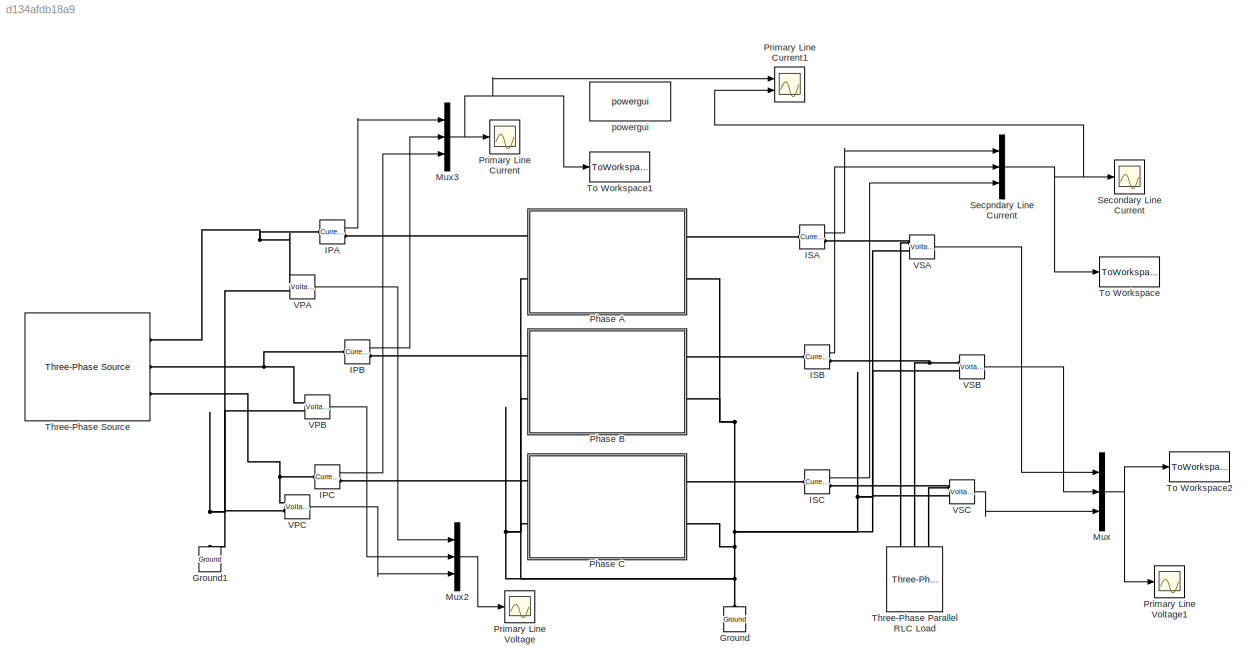
MODEL slx_d134afdb18a9
KIND model
CONFIG AbsTol = auto
CONFIG EnableMultiTasking = off
CONFIG FixedStep = auto
CONFIG MaxStep = auto
CONFIG MinStep = auto
CONFIG RelTol = 1e-3
CONFIG SampleTimeConstraint = Unconstrained
CONFIG SolverName = VariableStepAuto
CONFIG StartTime = 0.0
CONFIG StopTime = time_to_simulate
WORKSPACE source: mxarray member
WORKSPACE Lm = 0.126
WORKSPACE Rm = 146.7889
WORKSPACE windingl = [0.3203609 0.3203609 0.3203609 0.000464923 0.000464923 0.000464923]
WORKSPACE windingr = [0.046115 0.046115 0.046115 6.692455e-05 6.692455e-05 6.692455e-05]
BLOCK [Reference] Ground  REF=spsGroundLib/Ground
  NameLocation = right
  Ports = [0, 0, 0, 0, 0, 1]
  SourceBlock = spsGroundLib/Ground
  SourceProductBaseCode = PS
  SourceType = Ground
BLOCK [Reference] Ground1  REF=spsGroundLib/Ground
  NameLocation = right
  Ports = [0, 0, 0, 0, 0, 1]
  SourceBlock = spsGroundLib/Ground
  SourceProductBaseCode = PS
  SourceType = Ground
BLOCK [Reference] IPA  REF=spsCurrentMeasurementLib/Current Measurement
  Ports = [0, 1, 0, 0, 0, 1, 1]
  SourceBlock = spsCurrentMeasurementLib/Current Measurement
  SourceProductBaseCode = PS
  SourceType = Current Measurement
  UserDataPersistent = on
BLOCK [Reference] IPB  REF=spsCurrentMeasurementLib/Current Measurement
  Ports = [0, 1, 0, 0, 0, 1, 1]
  SourceBlock = spsCurrentMeasurementLib/Current Measurement
  SourceProductBaseCode = PS
  SourceType = Current Measurement
  UserDataPersistent = on
BLOCK [Reference] IPC  REF=spsCurrentMeasurementLib/Current Measurement
  Ports = [0, 1, 0, 0, 0, 1, 1]
  SourceBlock = spsCurrentMeasurementLib/Current Measurement
  SourceProductBaseCode = PS
  SourceType = Current Measurement
  UserDataPersistent = on
BLOCK [Reference] ISA  REF=spsCurrentMeasurementLib/Current Measurement
  Ports = [0, 1, 0, 0, 0, 1, 1]
  SourceBlock = spsCurrentMeasurementLib/Current Measurement
  SourceProductBaseCode = PS
  SourceType = Current Measurement
  UserDataPersistent = on
BLOCK [Reference] ISB  REF=spsCurrentMeasurementLib/Current Measurement
  Ports = [0, 1, 0, 0, 0, 1, 1]
  SourceBlock = spsCurrentMeasurementLib/Current Measurement
  SourceProductBaseCode = PS
  SourceType = Current Measurement
  UserDataPersistent = on
BLOCK [Reference] ISC  REF=spsCurrentMeasurementLib/Current Measurement
  Ports = [0, 1, 0, 0, 0, 1, 1]
  SourceBlock = spsCurrentMeasurementLib/Current Measurement
  SourceProductBaseCode = PS
  SourceType = Current Measurement
  UserDataPersistent = on
BLOCK [Mux] Mux
  DisplayOption = bar
  Inputs = 3
  Ports = [3, 1]
BLOCK [Mux] Mux2
  DisplayOption = bar
  Inputs = 3
  Ports = [3, 1]
BLOCK [Mux] Mux3
  DisplayOption = bar
  Inputs = 3
  Ports = [3, 1]
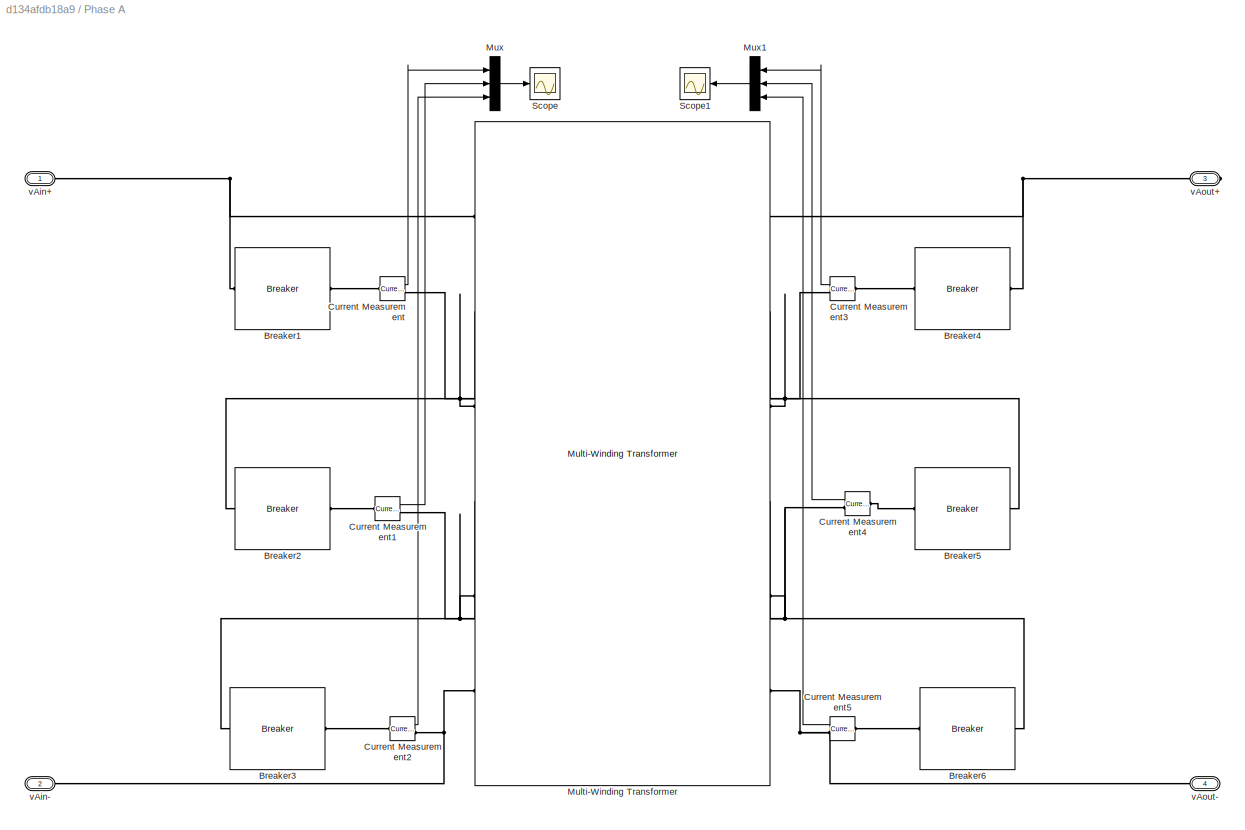
BLOCK [SubSystem] Phase A
  Ports = [0, 0, 0, 0, 0, 2, 2]
  RequestExecContextInheritance = off
BLOCK [Reference] Phase A/Breaker1  REF=spsBreakerLib/Breaker
  Ports = [0, 0, 0, 0, 0, 1, 1]
  SourceBlock = spsBreakerLib/Breaker
  SourceProductBaseCode = PS
  SourceType = Breaker
BLOCK [Reference] Phase A/Breaker2  REF=spsBreakerLib/Breaker
  Ports = [0, 0, 0, 0, 0, 1, 1]
  SourceBlock = spsBreakerLib/Breaker
  SourceProductBaseCode = PS
  SourceType = Breaker
BLOCK [Reference] Phase A/Breaker3  REF=spsBreakerLib/Breaker
  Ports = [0, 0, 0, 0, 0, 1, 1]
  SourceBlock = spsBreakerLib/Breaker
  SourceProductBaseCode = PS
  SourceType = Breaker
BLOCK [Reference] Phase A/Breaker4  REF=spsBreakerLib/Breaker
  Ports = [0, 0, 0, 0, 0, 1, 1]
  SourceBlock = spsBreakerLib/Breaker
  SourceProductBaseCode = PS
  SourceType = Breaker
BLOCK [Reference] Phase A/Breaker5  REF=spsBreakerLib/Breaker
  Ports = [0, 0, 0, 0, 0, 1, 1]
  SourceBlock = spsBreakerLib/Breaker
  SourceProductBaseCode = PS
  SourceType = Breaker
BLOCK [Reference] Phase A/Breaker6  REF=spsBreakerLib/Breaker
  Ports = [0, 0, 0, 0, 0, 1, 1]
  SourceBlock = spsBreakerLib/Breaker
  SourceProductBaseCode = PS
  SourceType = Breaker
BLOCK [Reference] Phase A/Current Measurement  REF=spsCurrentMeasurementLib/Current Measurement
  Ports = [0, 1, 0, 0, 0, 1, 1]
  SourceBlock = spsCurrentMeasurementLib/Current Measurement
  SourceProductBaseCode = PS
  SourceType = Current Measurement
  UserDataPersistent = on
BLOCK [Reference] Phase A/Current Measurement1  REF=spsCurrentMeasurementLib/Current Measurement
  Ports = [0, 1, 0, 0, 0, 1, 1]
  SourceBlock = spsCurrentMeasurementLib/Current Measurement
  SourceProductBaseCode = PS
  SourceType = Current Measurement
  UserDataPersistent = on
BLOCK [Reference] Phase A/Current Measurement2  REF=spsCurrentMeasurementLib/Current Measurement
  Ports = [0, 1, 0, 0, 0, 1, 1]
  SourceBlock = spsCurrentMeasurementLib/Current Measurement
  SourceProductBaseCode = PS
  SourceType = Current Measurement
  UserDataPersistent = on
BLOCK [Reference] Phase A/Current Measurement3  REF=spsCurrentMeasurementLib/Current Measurement
  Ports = [0, 1, 0, 0, 0, 1, 1]
  SourceBlock = spsCurrentMeasurementLib/Current Measurement
  SourceProductBaseCode = PS
  SourceType = Current Measurement
  UserDataPersistent = on
BLOCK [Reference] Phase A/Current Measurement4  REF=spsCurrentMeasurementLib/Current Measurement
  Ports = [0, 1, 0, 0, 0, 1, 1]
  SourceBlock = spsCurrentMeasurementLib/Current Measurement
  SourceProductBaseCode = PS
  SourceType = Current Measurement
  UserDataPersistent = on
BLOCK [Reference] Phase A/Current Measurement5  REF=spsCurrentMeasurementLib/Current Measurement
  Ports = [0, 1, 0, 0, 0, 1, 1]
  SourceBlock = spsCurrentMeasurementLib/Current Measurement
  SourceProductBaseCode = PS
  SourceType = Current Measurement
  UserDataPersistent = on
BLOCK [Reference] Phase A/Multi-Winding Transformer  REF=spsMultiWindingTransformerLib/Multi-Winding
Transformer
  Ports = [0, 0, 0, 0, 0, 6, 6]
  SourceBlock = spsMultiWindingTransformerLib/Multi-Winding\nTransformer
  SourceProductBaseCode = PS
  SourceType = Multi-Winding Transformer
BLOCK [Mux] Phase A/Mux
  DisplayOption = bar
  Inputs = 3
  Ports = [3, 1]
BLOCK [Mux] Phase A/Mux1
  DisplayOption = bar
  Inputs = 3
  Ports = [3, 1]
BLOCK [Scope] Phase A/Scope
  Floating = off
  NumInputPorts = 1
  Ports = [1]
  ScopeSpecificationString = Simulink.scopes.TimeScopeBlockCfg('CurrentConfiguration', extmgr.ConfigurationSet(extmgr.Configuration('Core','General UI',true),extmgr.Configuration('Core','Source UI',true),extmgr.Configuration('Sources','WiredSimulink',true,'DataLoggingVariableName','ScopeData1'),extmgr.Configuration('Visuals','Time Domain',true,'SerializedDisplays',{struct('MinYLimReal','-0.00357','MaxYLimReal','0.00357','YLab...<+1451ch>
BLOCK [Scope] Phase A/Scope1
  Floating = off
  NumInputPorts = 1
  Ports = [1]
  ScopeSpecificationString = Simulink.scopes.TimeScopeBlockCfg('CurrentConfiguration', extmgr.ConfigurationSet(extmgr.Configuration('Core','General UI',true),extmgr.Configuration('Core','Source UI',true),extmgr.Configuration('Sources','WiredSimulink',true,'DataLoggingVariableName','ScopeData2'),extmgr.Configuration('Visuals','Time Domain',true,'SerializedDisplays',{struct('MinYLimReal','-993.44354','MaxYLimReal','1351.22284',...<+1470ch>
BLOCK [PMIOPort] Phase A/vAin+
  Side = Left
BLOCK [PMIOPort] Phase A/vAin-
  Port = 2
  Side = Left
BLOCK [PMIOPort] Phase A/vAout+
  Port = 3
  Side = Right
BLOCK [PMIOPort] Phase A/vAout-
  Port = 4
  Side = Right
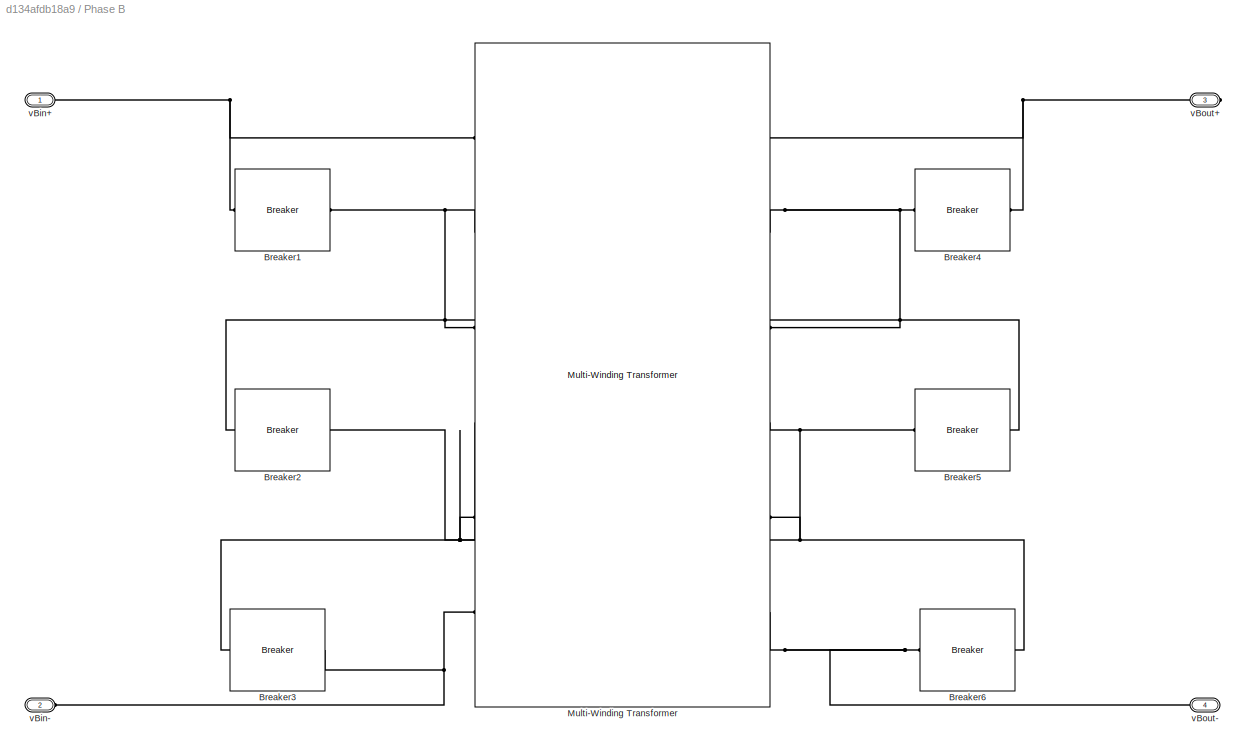
BLOCK [SubSystem] Phase B
  Ports = [0, 0, 0, 0, 0, 2, 2]
  RequestExecContextInheritance = off
BLOCK [Reference] Phase B/Breaker1  REF=spsBreakerLib/Breaker
  Ports = [0, 0, 0, 0, 0, 1, 1]
  SourceBlock = spsBreakerLib/Breaker
  SourceProductBaseCode = PS
  SourceType = Breaker
BLOCK [Reference] Phase B/Breaker2  REF=spsBreakerLib/Breaker
  Ports = [0, 0, 0, 0, 0, 1, 1]
  SourceBlock = spsBreakerLib/Breaker
  SourceProductBaseCode = PS
  SourceType = Breaker
BLOCK [Reference] Phase B/Breaker3  REF=spsBreakerLib/Breaker
  Ports = [0, 0, 0, 0, 0, 1, 1]
  SourceBlock = spsBreakerLib/Breaker
  SourceProductBaseCode = PS
  SourceType = Breaker
BLOCK [Reference] Phase B/Breaker4  REF=spsBreakerLib/Breaker
  Ports = [0, 0, 0, 0, 0, 1, 1]
  SourceBlock = spsBreakerLib/Breaker
  SourceProductBaseCode = PS
  SourceType = Breaker
BLOCK [Reference] Phase B/Breaker5  REF=spsBreakerLib/Breaker
  Ports = [0, 0, 0, 0, 0, 1, 1]
  SourceBlock = spsBreakerLib/Breaker
  SourceProductBaseCode = PS
  SourceType = Breaker
BLOCK [Reference] Phase B/Breaker6  REF=spsBreakerLib/Breaker
  Ports = [0, 0, 0, 0, 0, 1, 1]
  SourceBlock = spsBreakerLib/Breaker
  SourceProductBaseCode = PS
  SourceType = Breaker
BLOCK [Reference] Phase B/Multi-Winding Transformer  REF=spsMultiWindingTransformerLib/Multi-Winding
Transformer
  Ports = [0, 0, 0, 0, 0, 6, 6]
  SourceBlock = spsMultiWindingTransformerLib/Multi-Winding\nTransformer
  SourceProductBaseCode = PS
  SourceType = Multi-Winding Transformer
BLOCK [PMIOPort] Phase B/vBin+
  Side = Left
BLOCK [PMIOPort] Phase B/vBin-
  Port = 2
  Side = Left
BLOCK [PMIOPort] Phase B/vBout+
  Port = 3
  Side = Right
BLOCK [PMIOPort] Phase B/vBout-
  Port = 4
  Side = Right
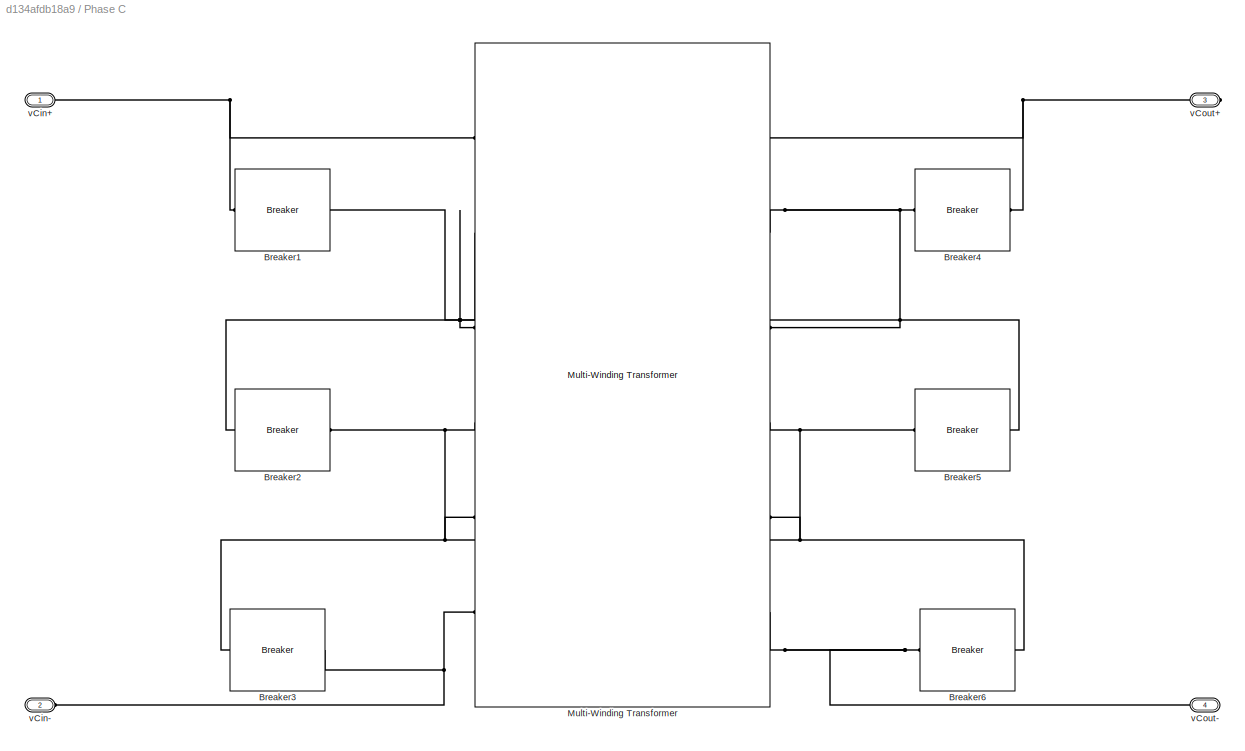
BLOCK [SubSystem] Phase C
  Ports = [0, 0, 0, 0, 0, 2, 2]
  RequestExecContextInheritance = off
BLOCK [Reference] Phase C/Breaker1  REF=spsBreakerLib/Breaker
  Ports = [0, 0, 0, 0, 0, 1, 1]
  SourceBlock = spsBreakerLib/Breaker
  SourceProductBaseCode = PS
  SourceType = Breaker
BLOCK [Reference] Phase C/Breaker2  REF=spsBreakerLib/Breaker
  Ports = [0, 0, 0, 0, 0, 1, 1]
  SourceBlock = spsBreakerLib/Breaker
  SourceProductBaseCode = PS
  SourceType = Breaker
BLOCK [Reference] Phase C/Breaker3  REF=spsBreakerLib/Breaker
  Ports = [0, 0, 0, 0, 0, 1, 1]
  SourceBlock = spsBreakerLib/Breaker
  SourceProductBaseCode = PS
  SourceType = Breaker
BLOCK [Reference] Phase C/Breaker4  REF=spsBreakerLib/Breaker
  Ports = [0, 0, 0, 0, 0, 1, 1]
  SourceBlock = spsBreakerLib/Breaker
  SourceProductBaseCode = PS
  SourceType = Breaker
BLOCK [Reference] Phase C/Breaker5  REF=spsBreakerLib/Breaker
  Ports = [0, 0, 0, 0, 0, 1, 1]
  SourceBlock = spsBreakerLib/Breaker
  SourceProductBaseCode = PS
  SourceType = Breaker
BLOCK [Reference] Phase C/Breaker6  REF=spsBreakerLib/Breaker
  Ports = [0, 0, 0, 0, 0, 1, 1]
  SourceBlock = spsBreakerLib/Breaker
  SourceProductBaseCode = PS
  SourceType = Breaker
BLOCK [Reference] Phase C/Multi-Winding Transformer  REF=spsMultiWindingTransformerLib/Multi-Winding
Transformer
  Ports = [0, 0, 0, 0, 0, 6, 6]
  SourceBlock = spsMultiWindingTransformerLib/Multi-Winding\nTransformer
  SourceProductBaseCode = PS
  SourceType = Multi-Winding Transformer
BLOCK [PMIOPort] Phase C/vCin+
  Side = Left
BLOCK [PMIOPort] Phase C/vCin-
  Port = 2
  Side = Left
BLOCK [PMIOPort] Phase C/vCout+
  Port = 3
  Side = Right
BLOCK [PMIOPort] Phase C/vCout-
  Port = 4
  Side = Right
BLOCK [Scope] Primary Line Current
  Floating = off
  NumInputPorts = 1
  Ports = [1]
  ScopeSpecificationString = Simulink.scopes.TimeScopeBlockCfg('CurrentConfiguration', extmgr.ConfigurationSet(extmgr.Configuration('Core','General UI',true),extmgr.Configuration('Core','Source UI',true),extmgr.Configuration('Sources','WiredSimulink',true,'DataLoggingVariableName','ScopeData1'),extmgr.Configuration('Visuals','Time Domain',true,'SerializedDisplays',{struct('MinYLimReal','-47.91561','MaxYLimReal','48.58131','YL...<+1923ch>
BLOCK [Scope] Primary Line Current1
  Floating = off
  NumInputPorts = 2
  Ports = [2]
  ScopeSpecificationString = Simulink.scopes.TimeScopeBlockCfg('CurrentConfiguration', extmgr.ConfigurationSet(extmgr.Configuration('Core','General UI',true,'FigureColor',[1 1 1]),extmgr.Configuration('Core','Source UI',true),extmgr.Configuration('Sources','WiredSimulink',true,'DataLoggingVariableName','ScopeData1'),extmgr.Configuration('Visuals','Time Domain',true,'SerializedDisplays',{struct('MinYLimReal','-88.63146','MaxYL...<+3147ch>
BLOCK [Scope] Primary Line Voltage
  Floating = off
  NumInputPorts = 1
  Ports = [1]
  ScopeSpecificationString = Simulink.scopes.TimeScopeBlockCfg('CurrentConfiguration', extmgr.ConfigurationSet(extmgr.Configuration('Core','General UI',true),extmgr.Configuration('Core','Source UI',true),extmgr.Configuration('Sources','WiredSimulink',true),extmgr.Configuration('Visuals','Time Domain',true,'SerializedDisplays',{struct('MinYLimReal','-10716.51762','MaxYLimReal','10716.51762','YLabelReal','','MinYLimMag','   0.0...<+1557ch>
BLOCK [Scope] Primary Line Voltage1
  Floating = off
  NumInputPorts = 1
  Ports = [1]
  ScopeSpecificationString = Simulink.scopes.TimeScopeBlockCfg('CurrentConfiguration', extmgr.ConfigurationSet(extmgr.Configuration('Core','General UI',true),extmgr.Configuration('Core','Source UI',true),extmgr.Configuration('Sources','WiredSimulink',true,'DataLoggingVariableName','ScopeData1'),extmgr.Configuration('Visuals','Time Domain',true,'SerializedDisplays',{struct('MinYLimReal','-132.82968','MaxYLimReal','132.82968','...<+1534ch>
BLOCK [Scope] Secondary Line Current
  Floating = off
  NumInputPorts = 1
  Ports = [1]
  ScopeSpecificationString = Simulink.scopes.TimeScopeBlockCfg('CurrentConfiguration', extmgr.ConfigurationSet(extmgr.Configuration('Core','General UI',true,'ShowStatusbar',false),extmgr.Configuration('Core','Source UI',true),extmgr.Configuration('Sources','WiredSimulink',true,'DataLoggingVariableName','outputVoltage','DataLogging',true,'DataLoggingSaveFormat','StructureWithTime'),extmgr.Configuration('Visuals','Time Domain',...<+2106ch>
BLOCK [Mux] Secpndary Line Current
  DisplayOption = bar
  Inputs = 3
  Ports = [3, 1]
BLOCK [Reference] Three-Phase Parallel RLC Load  REF=spsThreePhaseParallelRLCLoadLib/Three-Phase
Parallel RLC Load
  AttributesFormatString = \n
  Ports = [0, 0, 0, 0, 0, 3]
  SourceBlock = spsThreePhaseParallelRLCLoadLib/Three-Phase\nParallel RLC Load
  SourceProductBaseCode = PS
  SourceType = Three-Phase Parallel RLC Load
BLOCK [Reference] Three-Phase Source  REF=spsThreePhaseSourceLib/Three-Phase Source
  Ports = [0, 0, 0, 0, 0, 0, 3]
  SourceBlock = spsThreePhaseSourceLib/Three-Phase Source
  SourceProductBaseCode = PS
  SourceType = Three-Phase Source
BLOCK [ToWorkspace] To Workspace
  MaxDataPoints = inf
  Ports = [1]
  SampleTime = -1
  VariableName = outputcurrent
BLOCK [ToWorkspace] To Workspace1
  MaxDataPoints = inf
  Ports = [1]
  SampleTime = -1
  VariableName = inputcurrent
BLOCK [ToWorkspace] To Workspace2
  MaxDataPoints = inf
  Ports = [1]
  SampleTime = -1
  VariableName = outputvoltage
BLOCK [Reference] VPA  REF=spsVoltageMeasurementLib/Voltage Measurement
  Ports = [0, 1, 0, 0, 0, 2]
  SourceBlock = spsVoltageMeasurementLib/Voltage Measurement
  SourceProductBaseCode = PS
  SourceType = Voltage Measurement
  UserDataPersistent = on
BLOCK [Reference] VPB  REF=spsVoltageMeasurementLib/Voltage Measurement
  Ports = [0, 1, 0, 0, 0, 2]
  SourceBlock = spsVoltageMeasurementLib/Voltage Measurement
  SourceProductBaseCode = PS
  SourceType = Voltage Measurement
  UserDataPersistent = on
BLOCK [Reference] VPC  REF=spsVoltageMeasurementLib/Voltage Measurement
  Ports = [0, 1, 0, 0, 0, 2]
  SourceBlock = spsVoltageMeasurementLib/Voltage Measurement
  SourceProductBaseCode = PS
  SourceType = Voltage Measurement
  UserDataPersistent = on
BLOCK [Reference] VSA  REF=spsVoltageMeasurementLib/Voltage Measurement
  Ports = [0, 1, 0, 0, 0, 2]
  SourceBlock = spsVoltageMeasurementLib/Voltage Measurement
  SourceProductBaseCode = PS
  SourceType = Voltage Measurement
  UserDataPersistent = on
BLOCK [Reference] VSB  REF=spsVoltageMeasurementLib/Voltage Measurement
  Ports = [0, 1, 0, 0, 0, 2]
  SourceBlock = spsVoltageMeasurementLib/Voltage Measurement
  SourceProductBaseCode = PS
  SourceType = Voltage Measurement
  UserDataPersistent = on
BLOCK [Reference] VSC  REF=spsVoltageMeasurementLib/Voltage Measurement
  Ports = [0, 1, 0, 0, 0, 2]
  SourceBlock = spsVoltageMeasurementLib/Voltage Measurement
  SourceProductBaseCode = PS
  SourceType = Voltage Measurement
  UserDataPersistent = on
BLOCK [Reference] powergui  REF=spspowerguiLib/powergui
  Ports = []
  Priority = 1
  SourceBlock = spspowerguiLib/powergui
  SourceProductBaseCode = PS
  SourceType = PSB option menu block
LINE IPA:1 -> Mux3:1
LINE IPB:1 -> Mux3:2
LINE IPC:1 -> Mux3:3
LINE ISA:1 -> Secpndary Line Current:1
LINE ISB:1 -> Secpndary Line Current:2
LINE ISC:1 -> Secpndary Line Current:3
LINE Mux2:1 -> Primary Line Voltage:1
NET Mux3:1 -> Primary Line Current1:1, Primary Line Current:1, To Workspace1:1
NET Mux:1 -> Primary Line Voltage1:1, To Workspace2:1
LINE Phase A/Current Measurement1:1 -> Phase A/Mux:2
LINE Phase A/Current Measurement2:1 -> Phase A/Mux:3
LINE Phase A/Current Measurement3:1 -> Phase A/Mux1:1
LINE Phase A/Current Measurement4:1 -> Phase A/Mux1:2
LINE Phase A/Current Measurement5:1 -> Phase A/Mux1:3
LINE Phase A/Current Measurement:1 -> Phase A/Mux:1
LINE Phase A/Mux1:1 -> Phase A/Scope1:1
LINE Phase A/Mux:1 -> Phase A/Scope:1
NET Secpndary Line Current:1 -> Primary Line Current1:2, Secondary Line Current:1, To Workspace:1
LINE VPA:1 -> Mux2:1
LINE VPB:1 -> Mux2:2
LINE VPC:1 -> Mux2:3
LINE VSA:1 -> Mux:1
LINE VSB:1 -> Mux:2
LINE VSC:1 -> Mux:3
PNET net1: Ground1:LConn1 -- VPA:LConn2 -- VPB:LConn2 -- VPC:LConn2
PNET net2: Ground:LConn1 -- Phase A:LConn2 -- Phase A:RConn2 -- Phase B:LConn2 -- Phase B:RConn2 -- Phase C:LConn2 -- Phase C:RConn2 -- VSA:LConn2 -- VSB:LConn2 -- VSC:LConn2
PNET net3: IPA:LConn1 -- Three-Phase Source:RConn1 -- VPA:LConn1
PLINE IPA:RConn1 -- Phase A:LConn1
PNET net4: IPB:LConn1 -- Three-Phase Source:RConn2 -- VPB:LConn1
PLINE IPB:RConn1 -- Phase B:LConn1
PNET net5: IPC:LConn1 -- Three-Phase Source:RConn3 -- VPC:LConn1
PLINE IPC:RConn1 -- Phase C:LConn1
PLINE ISA:LConn1 -- Phase A:RConn1
PNET net6: ISA:RConn1 -- Three-Phase Parallel RLC Load:LConn1 -- VSA:LConn1
PLINE ISB:LConn1 -- Phase B:RConn1
PNET net7: ISB:RConn1 -- Three-Phase Parallel RLC Load:LConn2 -- VSB:LConn1
PLINE ISC:LConn1 -- Phase C:RConn1
PNET net8: ISC:RConn1 -- Three-Phase Parallel RLC Load:LConn3 -- VSC:LConn1
PLINE Phase A/Breaker1:LConn1 -- Phase A/Current Measurement:LConn1
PNET net9: Phase A/Breaker1:RConn1 -- Phase A/Multi-Winding Transformer:LConn1 -- Phase A/vAin+:RConn1
PLINE Phase A/Breaker2:LConn1 -- Phase A/Current Measurement1:LConn1
PNET net10: Phase A/Breaker2:RConn1 -- Phase A/Current Measurement:RConn1 -- Phase A/Multi-Winding Transformer:LConn2 -- Phase A/Multi-Winding Transformer:LConn3
PLINE Phase A/Breaker3:LConn1 -- Phase A/Current Measurement2:LConn1
PNET net11: Phase A/Breaker3:RConn1 -- Phase A/Current Measurement1:RConn1 -- Phase A/Multi-Winding Transformer:LConn4 -- Phase A/Multi-Winding Transformer:LConn5
PLINE Phase A/Breaker4:LConn1 -- Phase A/Current Measurement3:LConn1
PNET net12: Phase A/Breaker4:RConn1 -- Phase A/Multi-Winding Transformer:RConn1 -- Phase A/vAout+:RConn1
PLINE Phase A/Breaker5:LConn1 -- Phase A/Current Measurement4:LConn1
PNET net13: Phase A/Breaker5:RConn1 -- Phase A/Current Measurement3:RConn1 -- Phase A/Multi-Winding Transformer:RConn2 -- Phase A/Multi-Winding Transformer:RConn3
PLINE Phase A/Breaker6:LConn1 -- Phase A/Current Measurement5:LConn1
PNET net14: Phase A/Breaker6:RConn1 -- Phase A/Current Measurement4:RConn1 -- Phase A/Multi-Winding Transformer:RConn4 -- Phase A/Multi-Winding Transformer:RConn5
PNET net15: Phase A/Current Measurement2:RConn1 -- Phase A/Multi-Winding Transformer:LConn6 -- Phase A/vAin-:RConn1
PNET net16: Phase A/Current Measurement5:RConn1 -- Phase A/Multi-Winding Transformer:RConn6 -- Phase A/vAout-:RConn1
PNET net17: Phase B/Breaker1:LConn1 -- Phase B/Breaker2:RConn1 -- Phase B/Multi-Winding Transformer:LConn2 -- Phase B/Multi-Winding Transformer:LConn3
PNET net18: Phase B/Breaker1:RConn1 -- Phase B/Multi-Winding Transformer:LConn1 -- Phase B/vBin+:RConn1
PNET net19: Phase B/Breaker2:LConn1 -- Phase B/Breaker3:RConn1 -- Phase B/Multi-Winding Transformer:LConn4 -- Phase B/Multi-Winding Transformer:LConn5
PNET net20: Phase B/Breaker3:LConn1 -- Phase B/Multi-Winding Transformer:LConn6 -- Phase B/vBin-:RConn1
PNET net21: Phase B/Breaker4:LConn1 -- Phase B/Breaker5:RConn1 -- Phase B/Multi-Winding Transformer:RConn2 -- Phase B/Multi-Winding Transformer:RConn3
PNET net22: Phase B/Breaker4:RConn1 -- Phase B/Multi-Winding Transformer:RConn1 -- Phase B/vBout+:RConn1
PNET net23: Phase B/Breaker5:LConn1 -- Phase B/Breaker6:RConn1 -- Phase B/Multi-Winding Transformer:RConn4 -- Phase B/Multi-Winding Transformer:RConn5
PNET net24: Phase B/Breaker6:LConn1 -- Phase B/Multi-Winding Transformer:RConn6 -- Phase B/vBout-:RConn1
PNET net25: Phase C/Breaker1:LConn1 -- Phase C/Breaker2:RConn1 -- Phase C/Multi-Winding Transformer:LConn2 -- Phase C/Multi-Winding Transformer:LConn3
PNET net26: Phase C/Breaker1:RConn1 -- Phase C/Multi-Winding Transformer:LConn1 -- Phase C/vCin+:RConn1
PNET net27: Phase C/Breaker2:LConn1 -- Phase C/Breaker3:RConn1 -- Phase C/Multi-Winding Transformer:LConn4 -- Phase C/Multi-Winding Transformer:LConn5
PNET net28: Phase C/Breaker3:LConn1 -- Phase C/Multi-Winding Transformer:LConn6 -- Phase C/vCin-:RConn1
PNET net29: Phase C/Breaker4:LConn1 -- Phase C/Breaker5:RConn1 -- Phase C/Multi-Winding Transformer:RConn2 -- Phase C/Multi-Winding Transformer:RConn3
PNET net30: Phase C/Breaker4:RConn1 -- Phase C/Multi-Winding Transformer:RConn1 -- Phase C/vCout+:RConn1
PNET net31: Phase C/Breaker5:LConn1 -- Phase C/Breaker6:RConn1 -- Phase C/Multi-Winding Transformer:RConn4 -- Phase C/Multi-Winding Transformer:RConn5
PNET net32: Phase C/Breaker6:LConn1 -- Phase C/Multi-Winding Transformer:RConn6 -- Phase C/vCout-:RConn1
note: NET lines group one-source signal fan-out (src -> all destinations, sorted); 1:1 wires keep LINE; PNET lines group multi-terminal physical nets as a canonical sorted terminal list (undirected conserving connections); 2-terminal nets keep the pairwise PLINE form
